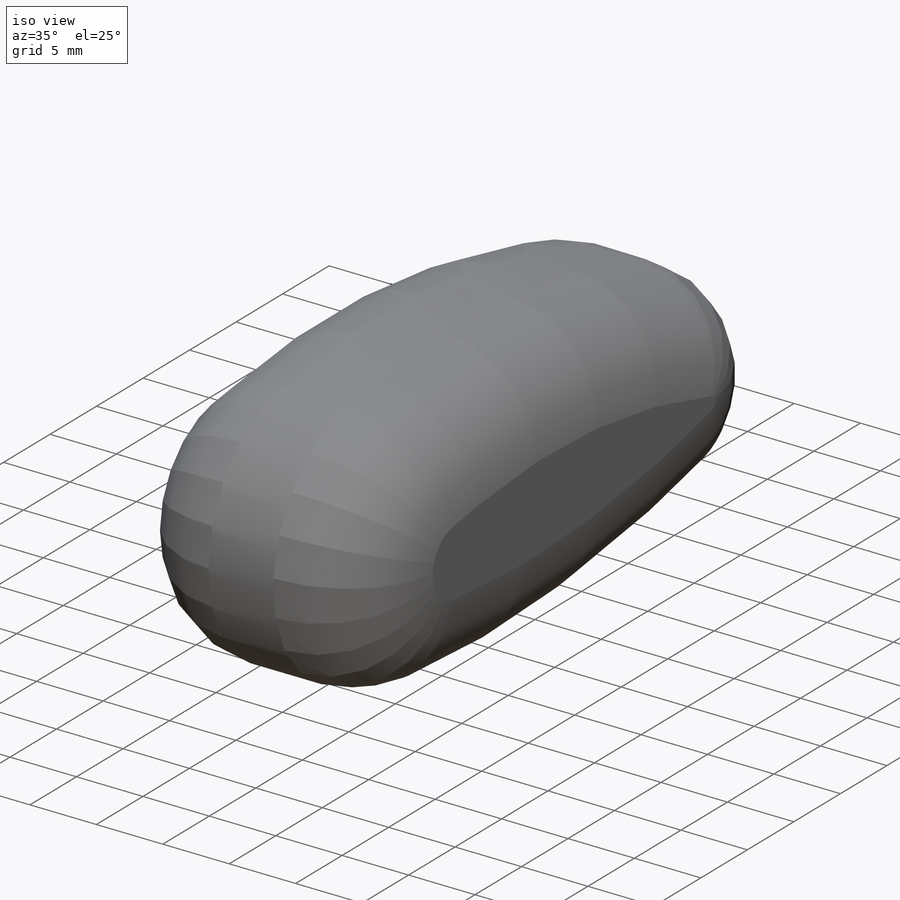
[diagram: iso view]
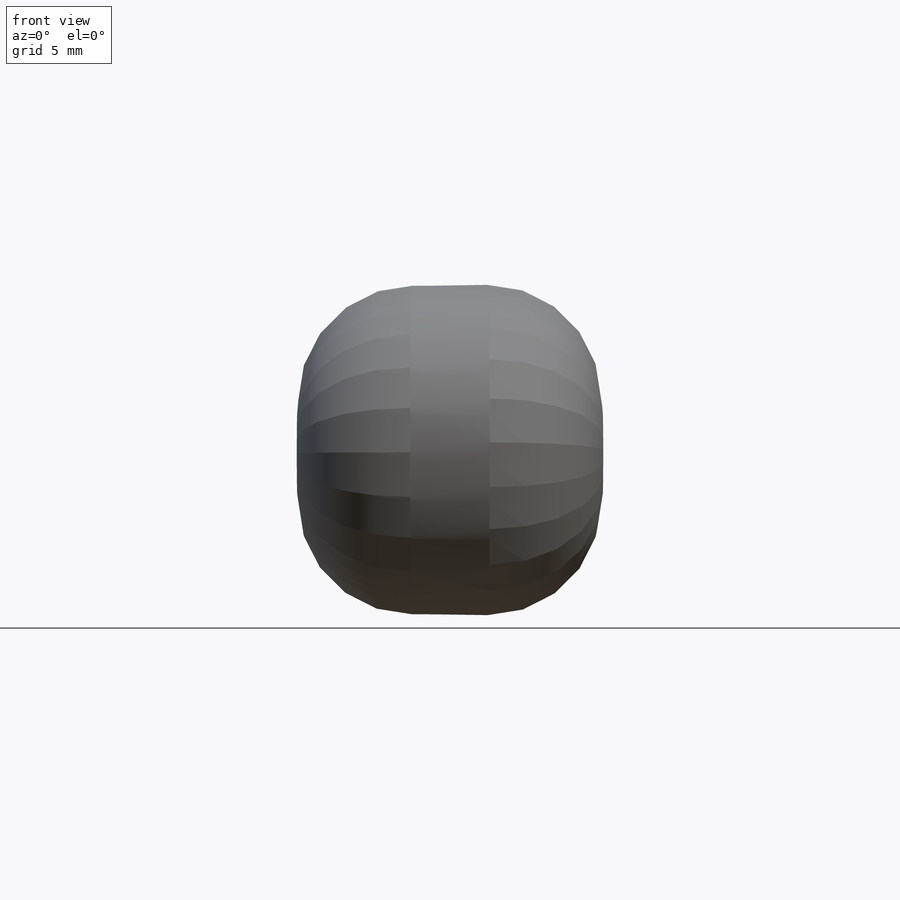
[diagram: front view]
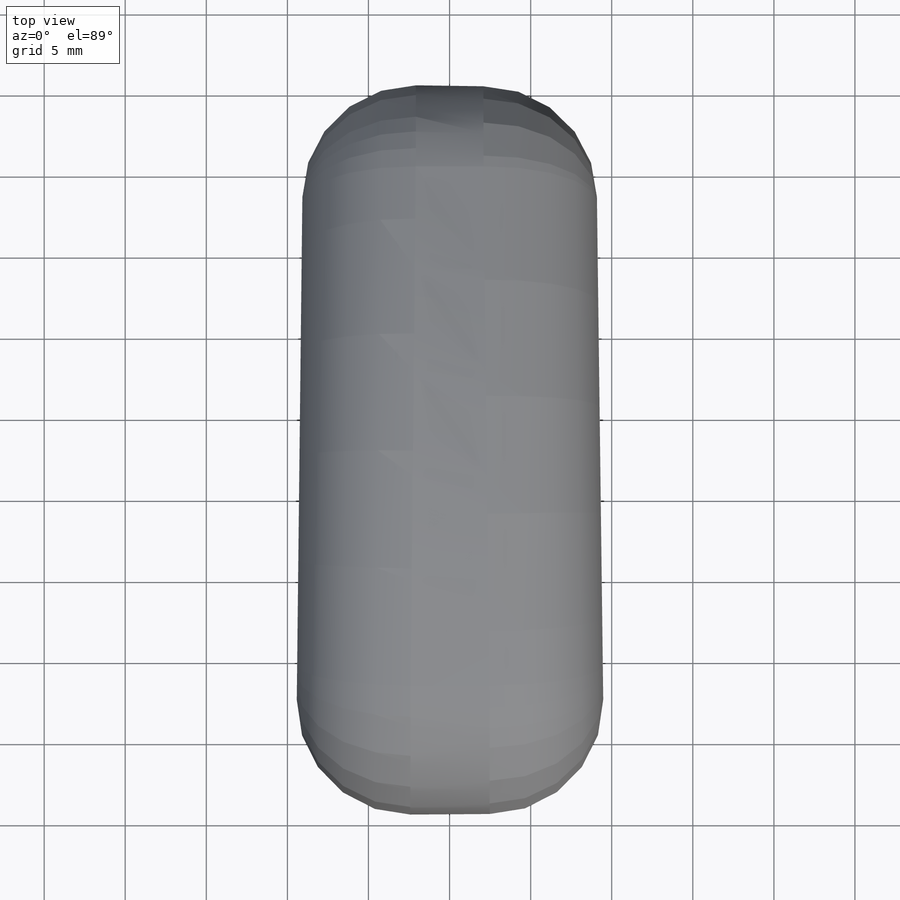
[diagram: top view]
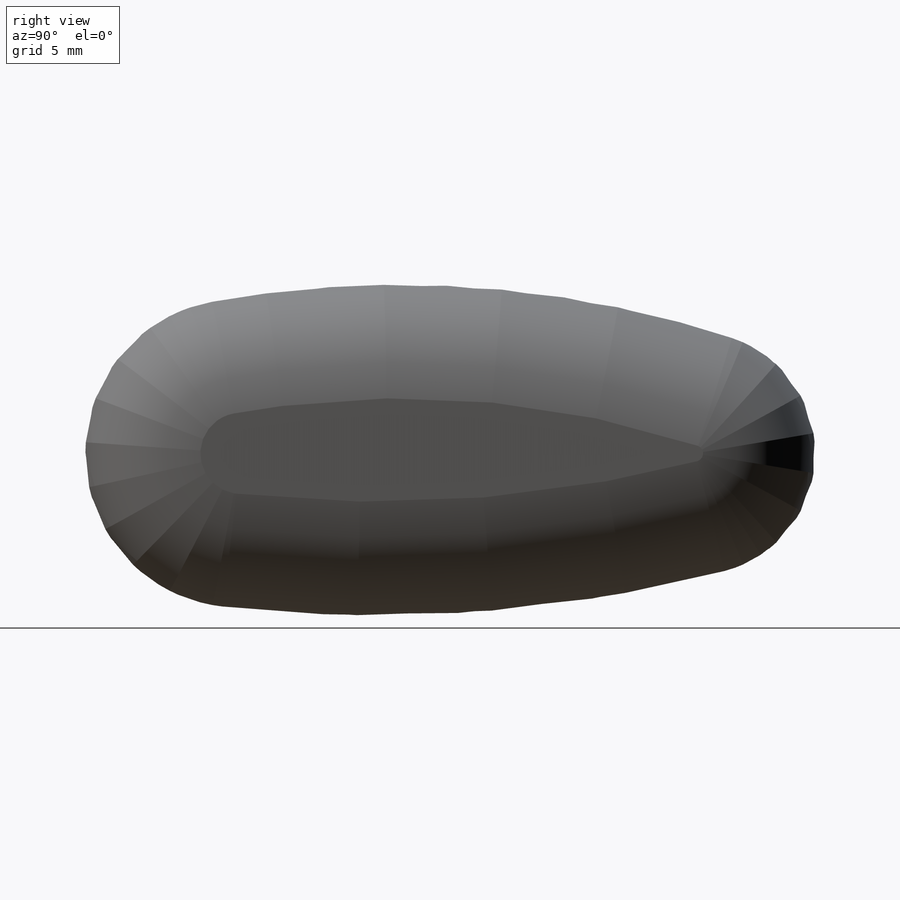
[diagram: right view]
SOLIDWORKS PART (.sldprt)
format: sldprt  version: not decoded by parser v0  size: 191,488 bytes
history: native  units: mm
features: sketch x4, plane x3, cut_extrude x3, fillet x2, material x1, extrude x1 (+10 scaffold rows collapsed)
feature tree (24):
  scaffold x10  (default folders/planes/origin — collapsed)
  material  "Material <not specified>"
  plane  "Vorne"
  plane  "Oben"
  plane  "Rechts"
  sketch  "Skizze2"  dims[c1.D1=19.0mm c1.D2=15.0mm c1.D3=15.0mm c1.D4=65.0mm c1.D5=85.0mm c2.D3=45.0mm]
  extrude  "Basis-Gundkörper"  Depth=19mm
  sketch  "Skizze3"  dims[D1=0.5mm]
  cut_extrude  "Seitlische Verjüngung rechts"  [1 undecoded]
  sketch  "Skizze4"  dims[D1=0.5mm]
  cut_extrude  "Seitlische Verjüngung links"  [1 undecoded]
  fillet  "Verrundung rechte Seite"  Radius=7mm
  fillet  "Verrundung linke Seite"  Radius=7mm
  sketch  "Skizze5"  dims[c1.D1=3.0mm c1.D2=3.0mm c1.D3=7.5mm c1.D4=9.5mm c1.D5=9.5mm c1.D6=7.5mm c1.D7=5.0mm c1.D8=1.5mm c1.D9=1.0mm c1.D11=5.0mm c1.D12=1.0mm c2.D3=5.5mm c2.D4=6.5mm c2.D5=6.5mm c2.D6=5.5mm c2.D10=~5.343029mm c3.D10=20.0deg]
  cut_extrude  "Gelenke"  Depth=10mm
decode coverage: 8 of 10 modeling features carry decoded parameters
note: ~ marks probable driven/reference dimensions
note: 2 parameter values undecoded
note: suppression state not decoded; provenance and decode notes live in map.json
